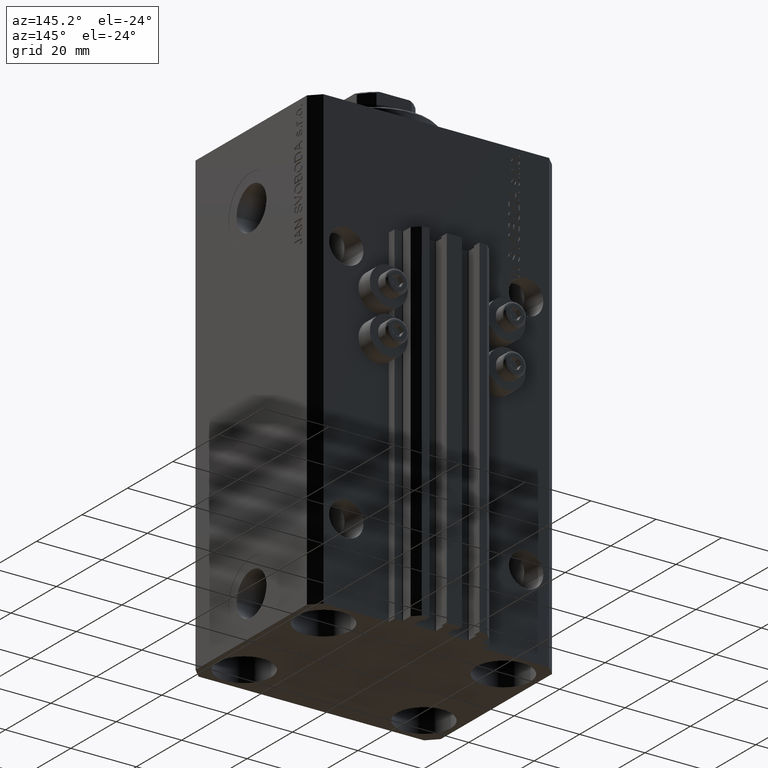
[diagram: clean part render]
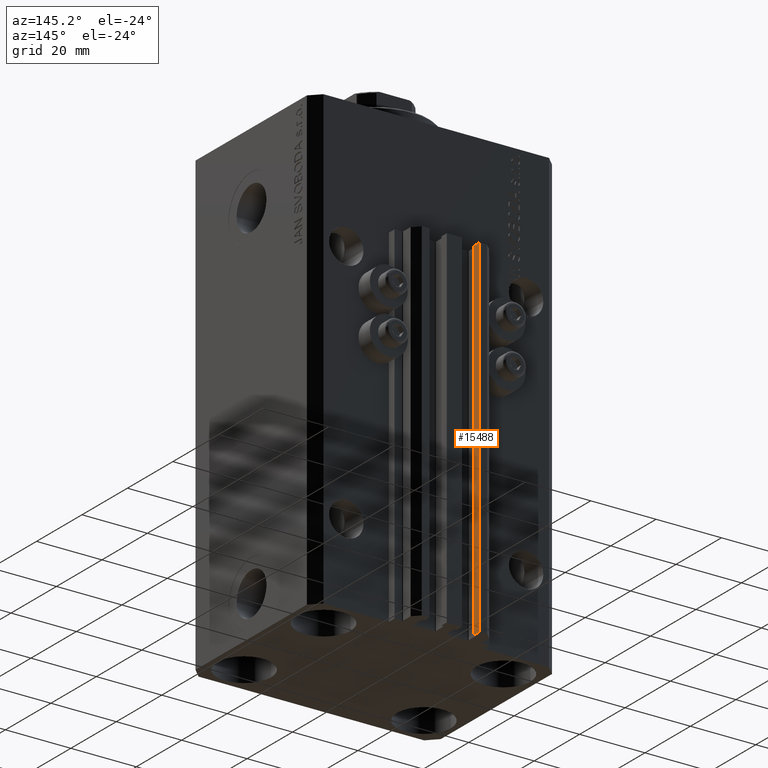
[diagram: same view with one face highlighted and labeled with its STEP entity id]
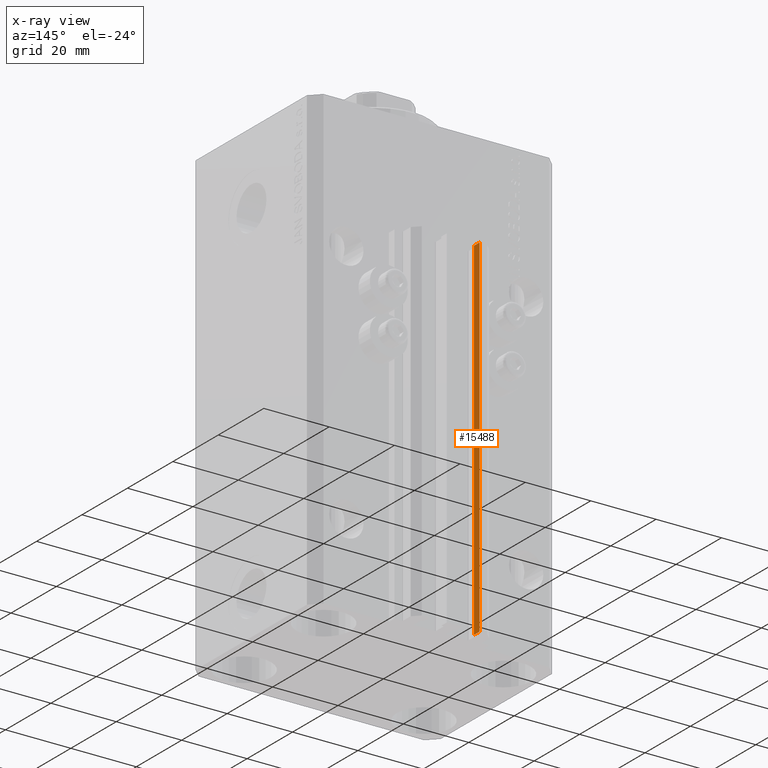
[diagram: x-ray of the same camera — body ghosted, the highlighted face saturated]
A machine part, auxiliary view. The second image highlights one B-rep face of the part: STEP entity #15488.
The next image is the same camera in x-ray: the body ghosted, the highlighted face saturated — about 0% of this face is hidden behind the body in this view.
In plain terms, the highlighted planar face has unit normal (1, 0, 0).
Its self-contained STEP definition (entity closure, byte-faithful):
#488 = VERTEX_POINT ( 'NONE', #12859 ) ;
#2369 = PLANE ( 'NONE',  #21354 ) ;
#2810 = VECTOR ( 'NONE', #22300, 1000.000000000000000 ) ;
#5798 = DIRECTION ( 'NONE',  ( 0.000000000000000000, 0.000000000000000000, 1.000000000000000000 ) ) ;
#6137 = EDGE_CURVE ( 'NONE', #31996, #8764, #17345, .T. ) ;
#7258 = LINE ( 'NONE', #40220, #2810 ) ;
#8698 = DIRECTION ( 'NONE',  ( 1.000000000000000000, 0.000000000000000000, 0.000000000000000000 ) ) ;
#8764 = VERTEX_POINT ( 'NONE', #22386 ) ;
#8961 = CARTESIAN_POINT ( 'NONE',  ( -7.650000000000000355, 35.50000000000000000, -140.0000000000000000 ) ) ;
#9175 = FACE_OUTER_BOUND ( 'NONE', #14233, .T. ) ;
#10461 = ORIENTED_EDGE ( 'NONE', *, *, #20777, .F. ) ;
#12859 = CARTESIAN_POINT ( 'NONE',  ( -7.650000000000000355, 33.09999999999999432, -33.00000000000000000 ) ) ;
#13964 = DIRECTION ( 'NONE',  ( 0.000000000000000000, 0.000000000000000000, 1.000000000000000000 ) ) ;
#14233 = EDGE_LOOP ( 'NONE', ( #23375, #10461, #40521, #22658 ) ) ;
#15031 = VECTOR ( 'NONE', #13964, 1000.000000000000000 ) ;
#15488 = ADVANCED_FACE ( 'NONE', ( #9175 ), #2369, .T. ) ;
#17345 = LINE ( 'NONE', #32130, #34362 ) ;
#20777 = EDGE_CURVE ( 'NONE', #31996, #488, #28288, .T. ) ;
#21354 = AXIS2_PLACEMENT_3D ( 'NONE', #23964, #8698, #45500 ) ;
#21559 = VERTEX_POINT ( 'NONE', #34396 ) ;
#22300 = DIRECTION ( 'NONE',  ( 0.000000000000000000, 1.000000000000000000, 0.000000000000000000 ) ) ;
#22386 = CARTESIAN_POINT ( 'NONE',  ( -7.650000000000000355, 35.50000000000000000, -140.0000000000000000 ) ) ;
#22658 = ORIENTED_EDGE ( 'NONE', *, *, #41858, .T. ) ;
#23375 = ORIENTED_EDGE ( 'NONE', *, *, #27100, .F. ) ;
#23964 = CARTESIAN_POINT ( 'NONE',  ( -7.650000000000000355, 33.09999999999999432, -140.0000000000000000 ) ) ;
#24879 = CARTESIAN_POINT ( 'NONE',  ( -7.650000000000000355, 33.09999999999999432, -140.0000000000000000 ) ) ;
#27100 = EDGE_CURVE ( 'NONE', #488, #21559, #7258, .T. ) ;
#27999 = VECTOR ( 'NONE', #5798, 1000.000000000000000 ) ;
#28288 = LINE ( 'NONE', #24879, #15031 ) ;
#31996 = VERTEX_POINT ( 'NONE', #47787 ) ;
#32130 = CARTESIAN_POINT ( 'NONE',  ( -7.650000000000000355, 33.09999999999999432, -140.0000000000000000 ) ) ;
#34362 = VECTOR ( 'NONE', #46876, 1000.000000000000000 ) ;
#34396 = CARTESIAN_POINT ( 'NONE',  ( -7.650000000000000355, 35.50000000000000000, -33.00000000000000000 ) ) ;
#40220 = CARTESIAN_POINT ( 'NONE',  ( -7.650000000000000355, 33.09999999999999432, -33.00000000000000000 ) ) ;
#40521 = ORIENTED_EDGE ( 'NONE', *, *, #6137, .T. ) ;
#41858 = EDGE_CURVE ( 'NONE', #8764, #21559, #46962, .T. ) ;
#45500 = DIRECTION ( 'NONE',  ( 0.000000000000000000, 0.000000000000000000, -1.000000000000000000 ) ) ;
#46876 = DIRECTION ( 'NONE',  ( 0.000000000000000000, 1.000000000000000000, 0.000000000000000000 ) ) ;
#46962 = LINE ( 'NONE', #8961, #27999 ) ;
#47787 = CARTESIAN_POINT ( 'NONE',  ( -7.650000000000000355, 33.09999999999999432, -140.0000000000000000 ) ) ;